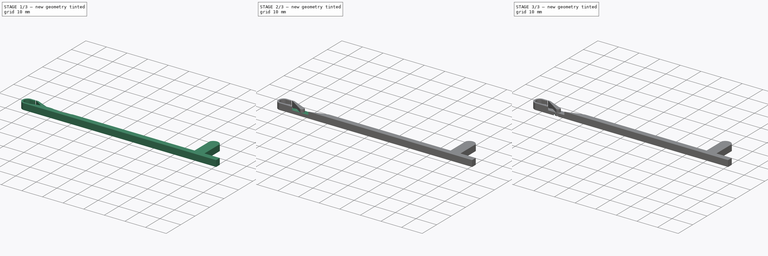
[diagram: build sequence overview — one tinted view per stage of 3, left to right]
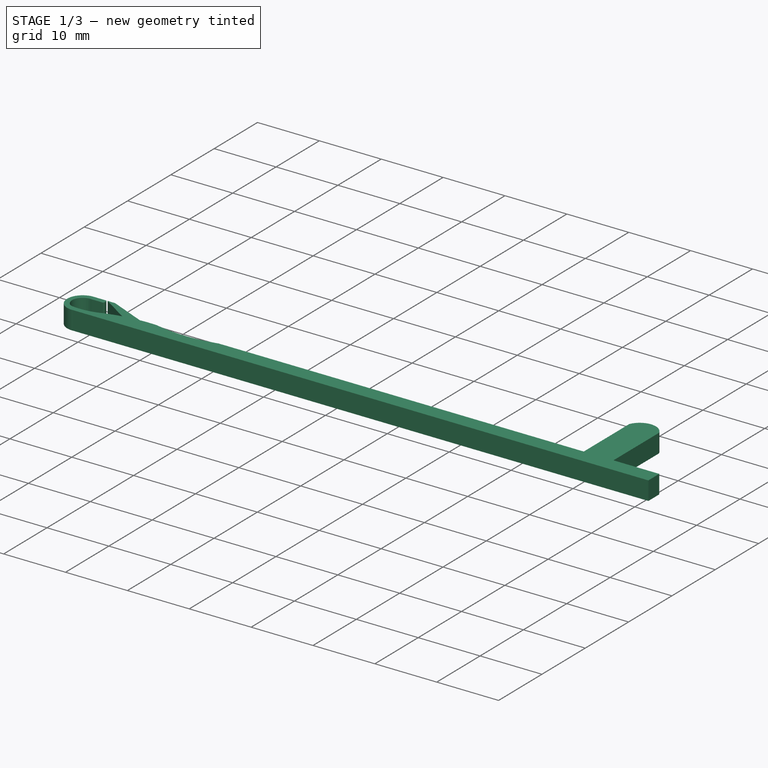
[diagram: stage 1 of 3 — iso view after this stage's code; geometry added in this stage tinted green]
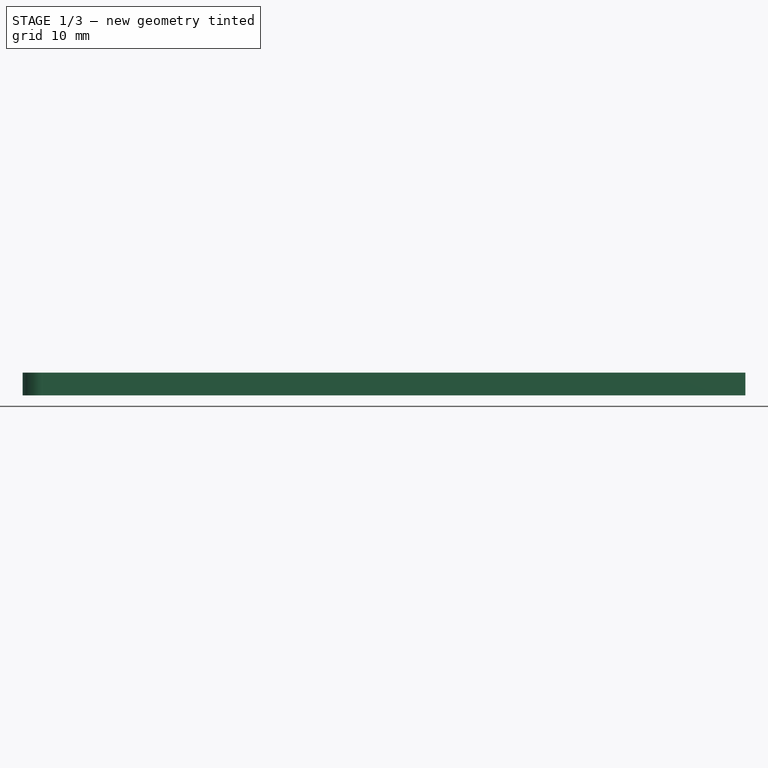
[diagram: stage 1 of 3 — front view after this stage's code; geometry added in this stage tinted green]
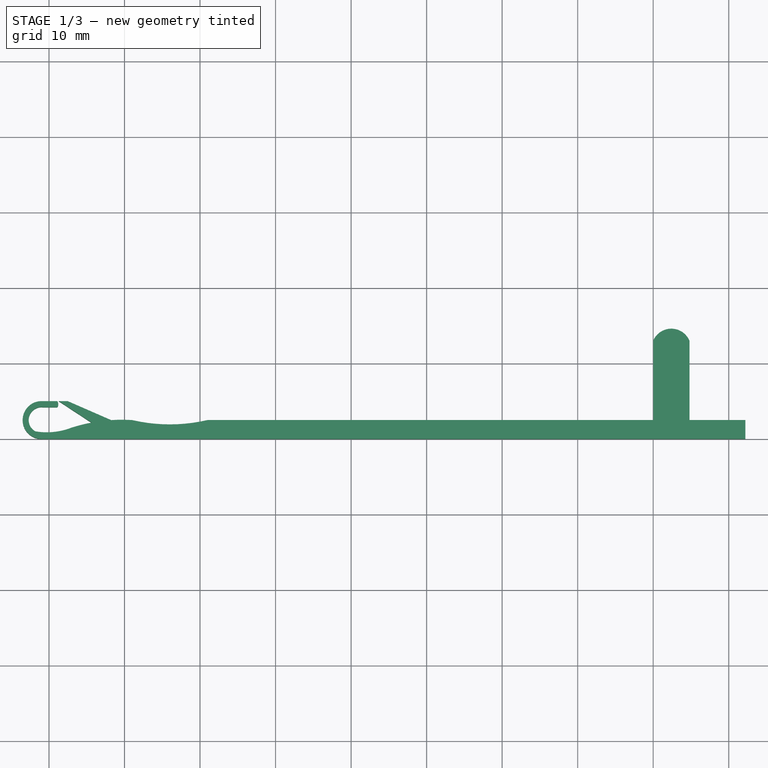
[diagram: stage 1 of 3 — top view after this stage's code; geometry added in this stage tinted green]
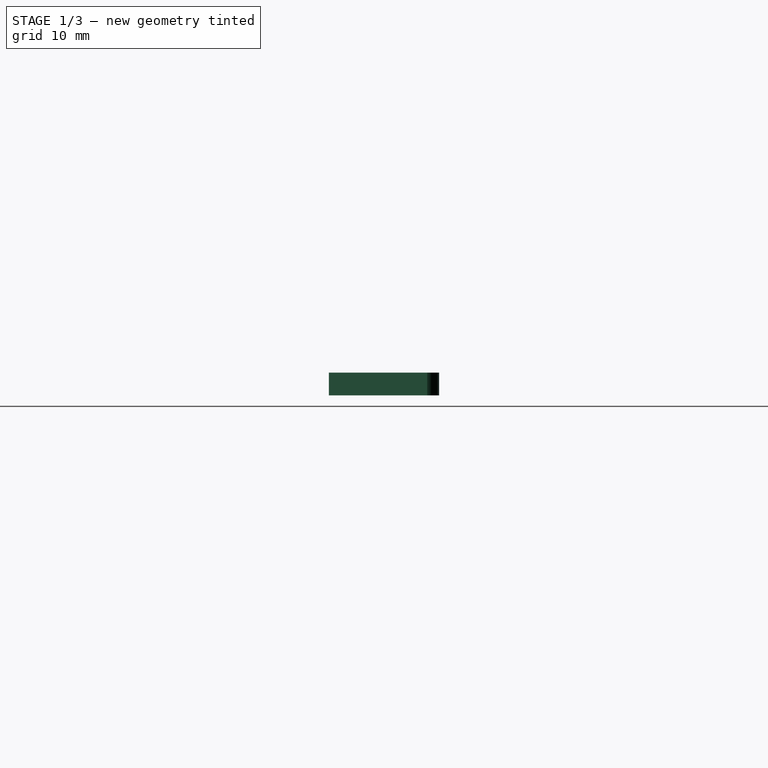
[diagram: stage 1 of 3 — right view after this stage's code; geometry added in this stage tinted green]
FCSTD DOCUMENT  (FreeCAD 0.16RUnknown)
Label: latch-needle
License: All rights reserved
LicenseURL: http://en.wikipedia.org/wiki/All_rights_reserved
objects: Sketcher::SketchObject×8, PartDesign::Pad×3, PartDesign::Pocket×3, Image::ImagePlane×1, Part::MultiFuse×1, PartDesign::Revolution×1
note: 23 computed .brp shape members not serialized (recipe doc carries the construction recipe); baked Part::Feature solids carry a one-line shape summary decoded from their .brp

FEATURE [Image::ImagePlane] ImagePlane
  Placement = pos=(-32.9986,-1.42787,-0.00574315) rot=(-0.009299,-0.009278,-0.999914;0.01432rad)
  XSize = 134.934
  YSize = 81.0702
FEATURE [Sketcher::SketchObject] Sketch  label="base"
  sketch-geometry (16):
    g0: LineSegment StartX=0 StartY=0 StartZ=0 EndX=-80.8 EndY=0 EndZ=0
    g1: LineSegment StartX=0 StartY=2.5 StartZ=0 EndX=-59 EndY=2.5 EndZ=0
    g2: ArcOfCircle CenterX=-64 CenterY=23.9243 CenterZ=0 NormalX=0 NormalY=0 NormalZ=1 Radius=22 StartAngle=4.48311 EndAngle=4.94167
    g3: LineSegment StartX=0 StartY=2.5 StartZ=0 EndX=0 EndY=0 EndZ=0
    g4: ArcOfCircle CenterX=-70.3174 CenterY=-19.4605 CenterZ=0 NormalX=0 NormalY=0 NormalZ=1 Radius=22 StartAngle=1.51088 EndAngle=1.87943
    g5: LineSegment [constr] StartX=-69 StartY=2.5 StartZ=0 EndX=-59 EndY=2.5 EndZ=0
    g6: LineSegment [constr] StartX=-77 StartY=1.5 StartZ=0 EndX=-77 EndY=2.5 EndZ=0
    g7: LineSegment [constr] StartX=-77 StartY=2.5 StartZ=0 EndX=-69 EndY=2.5 EndZ=0
    g8: ArcOfCircle CenterX=-80.98 CenterY=2.5 CenterZ=0 NormalX=0 NormalY=0 NormalZ=1 Radius=1.7095 StartAngle=1.46531 EndAngle=4.21211
    g9: ArcOfCircle CenterX=-80.98 CenterY=2.5 CenterZ=0 NormalX=0 NormalY=0 NormalZ=1 Radius=2.50647 StartAngle=1.49892 EndAngle=4.78426
    g10: LineSegment [constr] StartX=-80.8 StartY=5 StartZ=0 EndX=-80.8 EndY=4.2 EndZ=0
    g11: LineSegment StartX=-80.8 StartY=5 StartZ=0 EndX=-78.9 EndY=5 EndZ=0
    g12: LineSegment StartX=-80.8 StartY=4.2 StartZ=0 EndX=-78.9 EndY=4.2 EndZ=0
    g13: ArcOfCircle CenterX=-79.4501 CenterY=4.6 CenterZ=0 NormalX=0 NormalY=0 NormalZ=1 Radius=0.680154 StartAngle=5.65447 EndAngle=6.9119
    g14: LineSegment [constr] StartX=-78.9 StartY=5 StartZ=0 EndX=-78.9 EndY=4.2 EndZ=0
    g15: ArcOfCircle CenterX=-80.2983 CenterY=9.87383 CenterZ=0 NormalX=0 NormalY=0 NormalZ=1 Radius=9 StartAngle=4.54475 EndAngle=5.08761
  constraints (47):
    c: Coincident(g0,g-1)
    c: Horizontal(g0)
    c: DistanceX(g0,g0) = 80.8
    c: Horizontal(g1)
    c: Coincident(g2,g1)
    c: Coincident(g3,g1)
    c: Coincident(g3,g-1)
    c: Vertical(g3)
    c: DistanceY(g3,g3) = 2.5
    c: DistanceX(g1,g1) = 59
    c: Coincident(g4,g2)
    c: Coincident(g5,g1)
    c: Horizontal(g5)
    c: Coincident(g5,g2)
    c: DistanceX(g5,g5) = 10
    c: Coincident(g6,g4)
    c: Vertical(g6)
    c: Coincident(g7,g6)
    c: Coincident(g7,g2)
    c: Horizontal(g7)
    c: DistanceX(g7,g7) = 8
    c: DistanceY(g6,g6) = 1
    c: Coincident(g9,g8)
    c: Coincident(g9,g0)
    c: Coincident(g10,g9)
    c: Coincident(g10,g8)
    c: Vertical(g10)
    c: DistanceX(g8,g0) = 1
    c: DistanceY(g0,g8) = 1
    c: DistanceX(g0,g8) = 0
    c: Coincident(g11,g9)
    c: Coincident(g12,g8)
    c: Horizontal(g12)
    c: Coincident(g13,g11)
    c: Coincident(g12,g13)
    c: Horizontal(g11)
    c: Coincident(g14,g11)
    c: Coincident(g14,g12)
    c: Vertical(g14)
    c: DistanceX(g11,g11) = 1.9
    c: DistanceY(g10,g10) = 0.8
    c: Coincident(g15,g4)
    c: Coincident(g15,g8)
    c: Radius(g15) = 9
    c: Radius(g4) = 22
    c: Radius(g2) = 22
    c: DistanceY(g12) = 4.2
FEATURE [PartDesign::Pad] Pad
  Length = 3
  Length2 = 100
  Sketch = -> Sketch
  Type = 0
FEATURE [Sketcher::SketchObject] Sketch001  label="butt"
  sketch-geometry (7):
    g0: LineSegment StartX=0 StartY=0 StartZ=0 EndX=0 EndY=13 EndZ=0
    g1: ArcOfCircle CenterX=2.4 CenterY=12 CenterZ=0 NormalX=0 NormalY=0 NormalZ=1 Radius=2.6 StartAngle=0.394791 EndAngle=2.7468
    g2: LineSegment StartX=4.8 StartY=13 StartZ=0 EndX=4.8 EndY=2.5 EndZ=0
    g3: LineSegment StartX=4.8 StartY=2.5 StartZ=0 EndX=12.2 EndY=2.5 EndZ=0
    g4: LineSegment StartX=12.2 StartY=2.5 StartZ=0 EndX=12.2 EndY=0 EndZ=0
    g5: LineSegment StartX=12.2 StartY=0 StartZ=0 EndX=0 EndY=0 EndZ=0
    g6: LineSegment [constr] StartX=0 StartY=13 StartZ=0 EndX=4.8 EndY=13 EndZ=0
  constraints (20):
    c: Vertical(g0)
    c: Coincident(g1,g0)
    c: Coincident(g1,g2)
    c: Vertical(g2)
    c: Coincident(g2,g3)
    c: Horizontal(g3)
    c: Coincident(g3,g4)
    c: Vertical(g4)
    c: Coincident(g4,g5)
    c: Coincident(g5,g-1)
    c: Horizontal(g5)
    c: Coincident(g0,g-1)
    c: DistanceY(g0,g0) = 13
    c: Coincident(g6,g0)
    c: Coincident(g6,g1)
    c: Horizontal(g6)
    c: DistanceX(g-1,g2) = 4.8
    c: DistanceX(g3,g3) = 7.4
    c: Radius(g1) = 2.6
    c: DistanceY(g4,g4) = 2.5
FEATURE [PartDesign::Pad] Pad001
  Length = 3
  Length2 = 100
  Sketch = -> Sketch001
  Type = 0
FEATURE [Sketcher::SketchObject] Sketch006
  sketch-geometry (5):
    g0: LineSegment StartX=-71.1773 StartY=0.0669919 StartZ=0 EndX=-78.7049 EndY=5 EndZ=0
    g1: LineSegment StartX=-78.7049 StartY=5 StartZ=0 EndX=-77.5049 EndY=5 EndZ=0
    g2: LineSegment StartX=-77.5049 StartY=5 StartZ=0 EndX=-70.174 EndY=1.79717 EndZ=0
    g3: ArcOfCircle CenterX=-71.2495 CenterY=1.26482 CenterZ=0 NormalX=0 NormalY=0 NormalZ=1 Radius=1.2 StartAngle=4.7726 EndAngle=6.74283
    g4: LineSegment [constr] StartX=-71.1773 StartY=0.0669919 StartZ=0 EndX=-70.174 EndY=1.79717 EndZ=0
  constraints (15):
    c: Coincident(g0,g1)
    c: Horizontal(g1)
    c: Coincident(g1,g2)
    c: DistanceY(g0) = 5
    c: DistanceX(g1,g1) = 1.2
    c: Coincident(g3,g0)
    c: Radius(g3) = 1.2
    c: DistanceX(g3) = -71.2495
    c: DistanceY(g3) = 1.26482
    c: Distance(g0) = 9
    c: Distance(g2) = 8
    c: Coincident(g2,g3)
    c: Coincident(g4,g0)
    c: Coincident(g4,g2)
    c: Distance(g4) = 2
FEATURE [PartDesign::Pad] Pad002
  Length = 3
  Length2 = 100
  Sketch = -> Sketch006
  Type = 0
FEATURE [Sketcher::SketchObject] Sketch007
  ExternalGeometry = -> [Pad002]
  Placement = pos=(0,0,0) rot=(1,0,0;3.14159rad)
  Support = -> Pad002 [Face5]
  sketch-geometry (3):
    g0: ArcOfCircle CenterX=-71.5007 CenterY=0.020673 CenterZ=0 NormalX=0 NormalY=0 NormalZ=1 Radius=4.06614 StartAngle=3.69765 EndAngle=4.28461
    g1: LineSegment StartX=-74.9542 StartY=-2.12561 StartZ=0 EndX=-71.1773 EndY=-0.0669919 EndZ=0
    g2: LineSegment StartX=-73.1875 StartY=-3.67906 StartZ=0 EndX=-70.174 EndY=-1.79717 EndZ=0
  constraints (4):
    c: Coincident(g1,g0)
    c: Coincident(g1,g-3)
    c: Coincident(g2,g0)
    c: Coincident(g2,g-3)
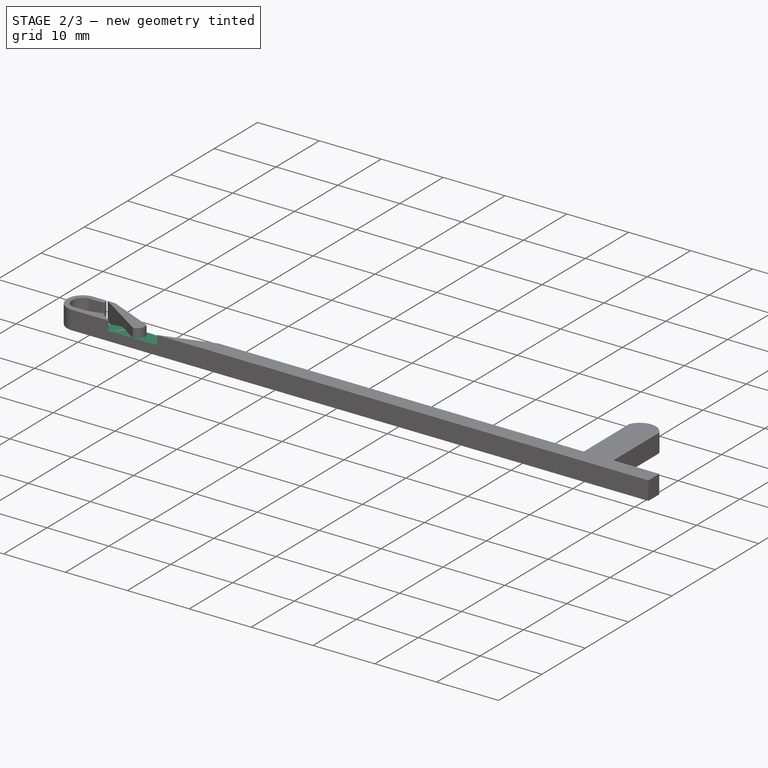
[diagram: stage 2 of 3 — iso view after this stage's code; geometry added in this stage tinted green]
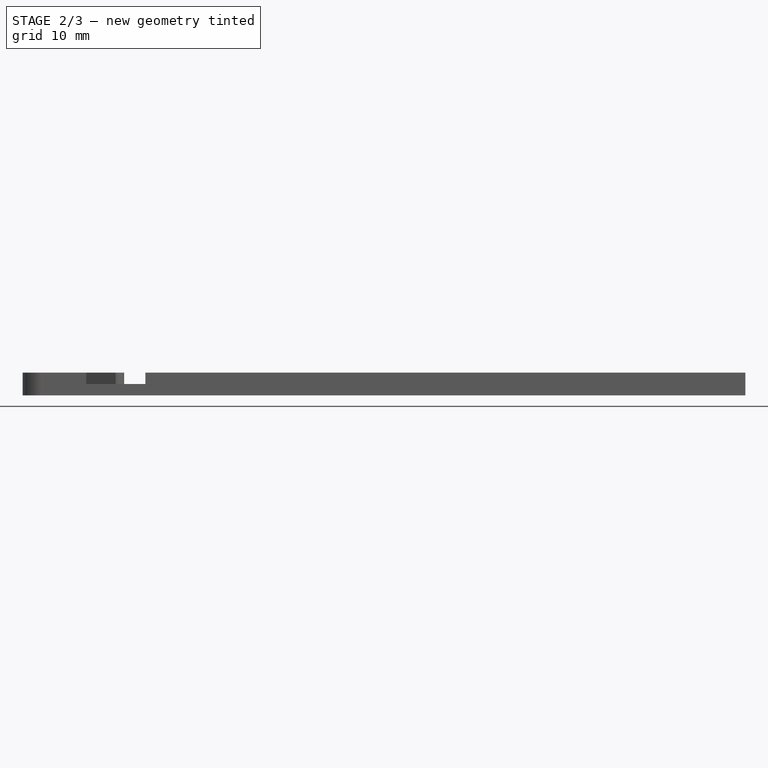
[diagram: stage 2 of 3 — front view after this stage's code; geometry added in this stage tinted green]
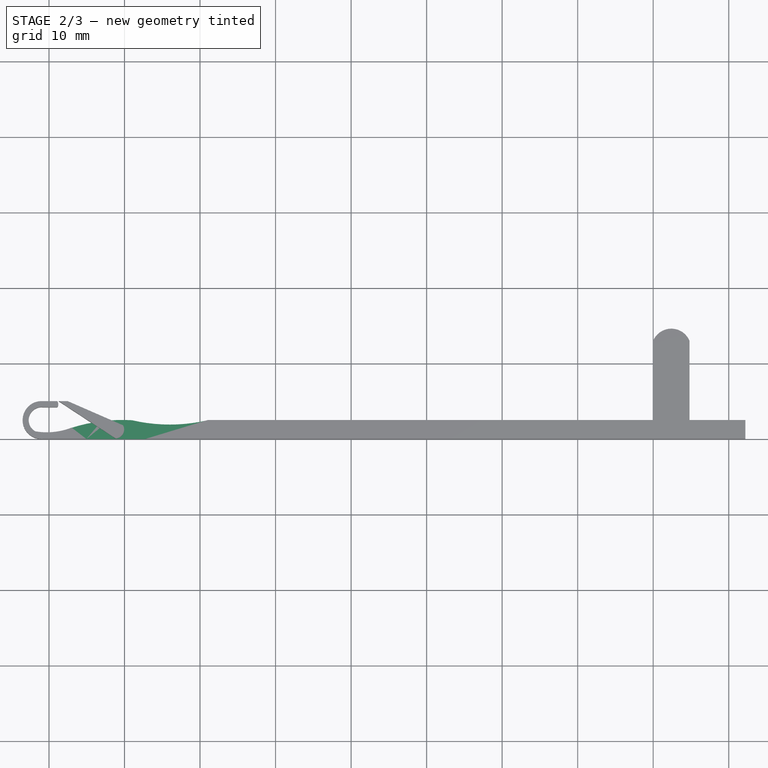
[diagram: stage 2 of 3 — top view after this stage's code; geometry added in this stage tinted green]
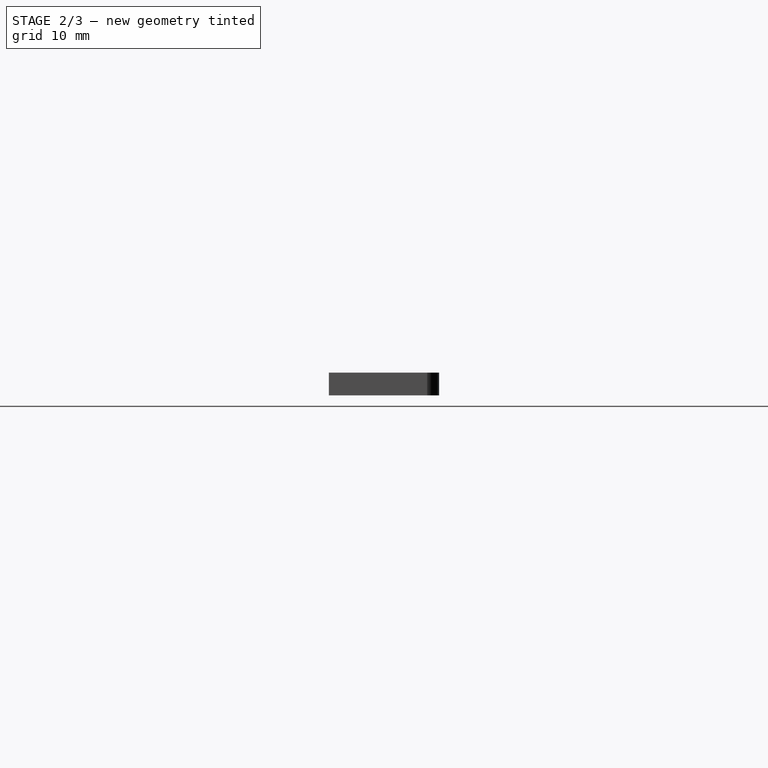
[diagram: stage 2 of 3 — right view after this stage's code; geometry added in this stage tinted green]
FEATURE [Part::MultiFuse] Fusion  label="[stl]"
  Shapes = -> [Pad001,Pad]
FEATURE [Sketcher::SketchObject] Sketch003  label="pocket"
  ExternalGeometry = -> [Fusion]
  Placement = pos=(0,0,3) rot=(0,0,1;0rad)
  Support = -> Fusion [Face11]
  sketch-geometry (5):
    g0: LineSegment StartX=-75.0571 StartY=0 StartZ=0 EndX=-67.2309 EndY=0 EndZ=0
    g1: LineSegment StartX=-75.0571 StartY=0 StartZ=0 EndX=-77 EndY=1.5 EndZ=0
    g2: LineSegment StartX=-67.2309 StartY=0 StartZ=0 EndX=-59 EndY=2.5 EndZ=0
    g3: ArcOfCircle CenterX=-70.3174 CenterY=-19.4605 CenterZ=0 NormalX=0 NormalY=0 NormalZ=1 Radius=22 StartAngle=1.51088 EndAngle=1.87943
    g4: ArcOfCircle CenterX=-64 CenterY=23.9243 CenterZ=0 NormalX=0 NormalY=0 NormalZ=1 Radius=22 StartAngle=4.48311 EndAngle=4.94167
  constraints (12):
    c: PointOnObject(g0,g-1)
    c: Horizontal(g0)
    c: Coincident(g1,g0)
    c: Coincident(g2,g0)
    c: Coincident(g1,g-3)
    c: Coincident(g2,g-4)
    c: Coincident(g3,g1)
    c: Coincident(g3,g-4)
    c: Coincident(g4,g3)
    c: Coincident(g4,g2)
    c: Coincident(g4,g-4)
    c: Coincident(g3,g-3)
FEATURE [PartDesign::Pocket] Pocket
  Length = 1.5
  Sketch = -> Sketch003
  Type = 0
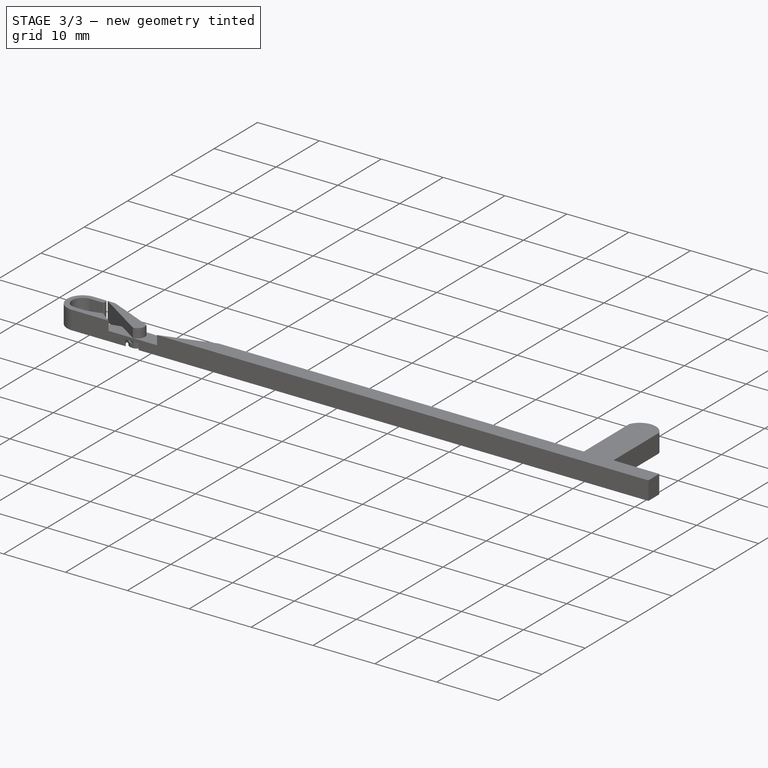
[diagram: stage 3 of 3 — iso view after this stage's code; geometry added in this stage tinted green]
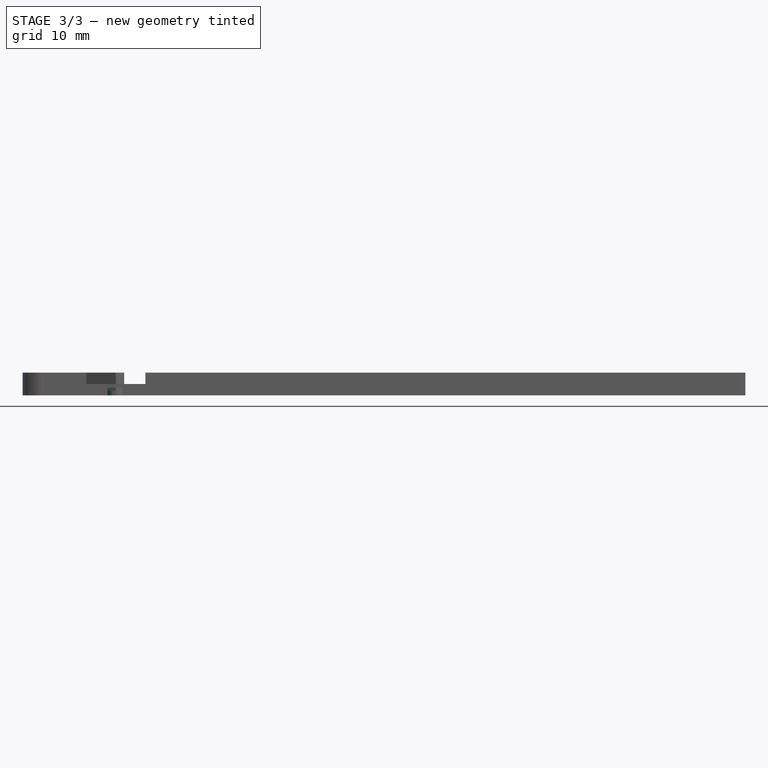
[diagram: stage 3 of 3 — front view after this stage's code; geometry added in this stage tinted green]
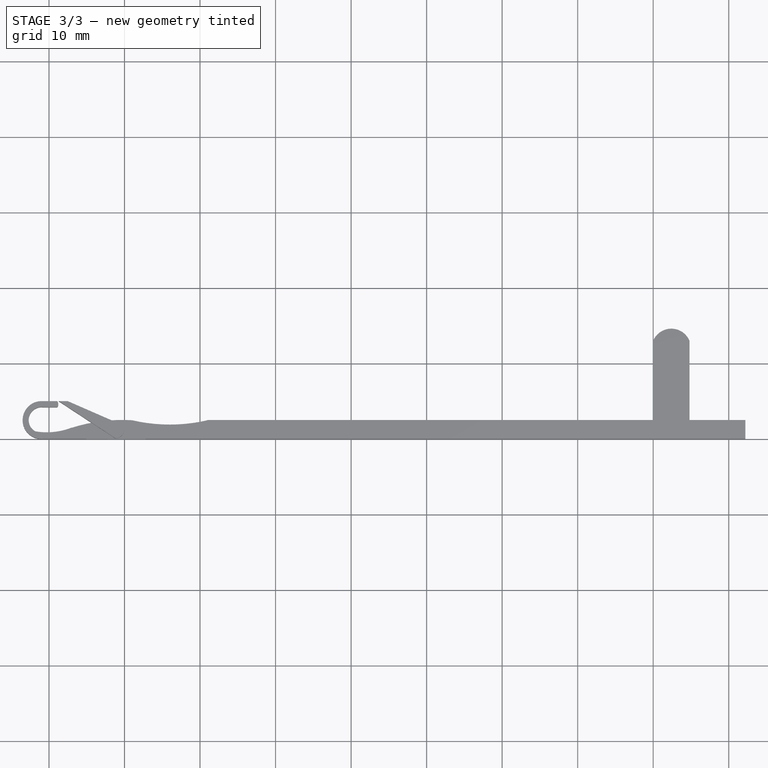
[diagram: stage 3 of 3 — top view after this stage's code; geometry added in this stage tinted green]
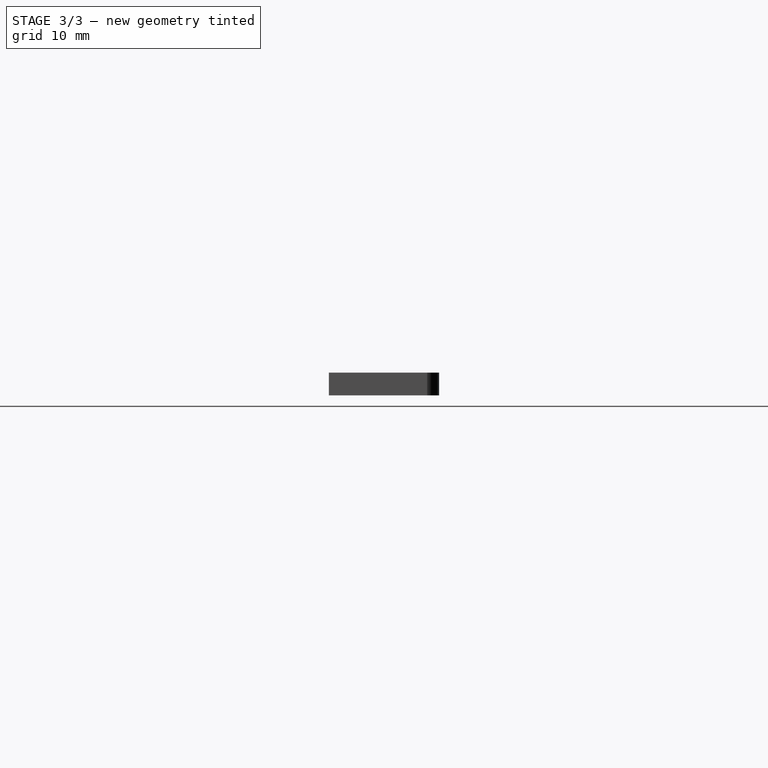
[diagram: stage 3 of 3 — right view after this stage's code; geometry added in this stage tinted green]
FEATURE [Sketcher::SketchObject] Sketch002  label="rivet-hole"
  Placement = pos=(0,0,1.5) rot=(0,0,1;0rad)
  Support = -> Pocket [Face22]
  sketch-geometry (1):
    g0: Circle CenterX=-71.2644 CenterY=1.28118 CenterZ=0 NormalX=0 NormalY=0 NormalZ=1 Radius=0.8
  constraints (1):
    c: Radius(g0) = 0.8
FEATURE [PartDesign::Pocket] Pocket001
  Length = 5
  Sketch = -> Sketch002
  Type = 1
FEATURE [Sketcher::SketchObject] Sketch004  label="rivet-ps"
  Placement = pos=(-71.2644,1.28118,0) rot=(-1,0,0;4.71239rad)
  sketch-geometry (6):
    g0: LineSegment StartX=0 StartY=2 StartZ=0 EndX=0 EndY=0 EndZ=0
    g1: LineSegment StartX=0 StartY=0 StartZ=0 EndX=1.2 EndY=0 EndZ=0
    g2: LineSegment StartX=1.2 StartY=0 StartZ=0 EndX=1.2 EndY=0.6 EndZ=0
    g3: LineSegment StartX=1.2 StartY=0.6 StartZ=0 EndX=0.6 EndY=0.6 EndZ=0
    g4: LineSegment StartX=0.6 StartY=0.6 StartZ=0 EndX=0.6 EndY=2 EndZ=0
    g5: LineSegment StartX=0.6 StartY=2 StartZ=0 EndX=0 EndY=2 EndZ=0
  constraints (17):
    c: Coincident(g0,g-1)
    c: Vertical(g0)
    c: Coincident(g0,g1)
    c: Horizontal(g1)
    c: Coincident(g1,g2)
    c: Vertical(g2)
    c: Coincident(g2,g3)
    c: Horizontal(g3)
    c: Coincident(g3,g4)
    c: Vertical(g4)
    c: Coincident(g4,g5)
    c: Coincident(g5,g0)
    c: Horizontal(g5)
    c: DistanceY(g2,g2) = 0.6
    c: DistanceY(g0,g0) = 2
    c: DistanceX(g1,g1) = 1.2
    c: DistanceX(g5,g5) = 0.6
FEATURE [PartDesign::Revolution] Revolution
  Angle = 360
  Axis = (0,0,1)
  Base = (-71.2644,1.28118,0)
  Placement = pos=(-71.2644,1.28118,0) rot=(-1,0,0;4.71239rad)
  ReferenceAxis = -> Sketch004 [V_Axis]
  Reversed = true
  Sketch = -> Sketch004
FEATURE [Sketcher::SketchObject] Sketch005  label="countersink"
  Placement = pos=(0,0,0) rot=(1,0,0;3.14159rad)
  Support = -> Pocket001 [Face8]
  sketch-geometry (1):
    g0: Circle CenterX=-71.2286 CenterY=-1.30197 CenterZ=0 NormalX=0 NormalY=0 NormalZ=1 Radius=1.66762
FEATURE [PartDesign::Pocket] Pocket002
  Length = 1
  Sketch = -> Sketch005
  Type = 0
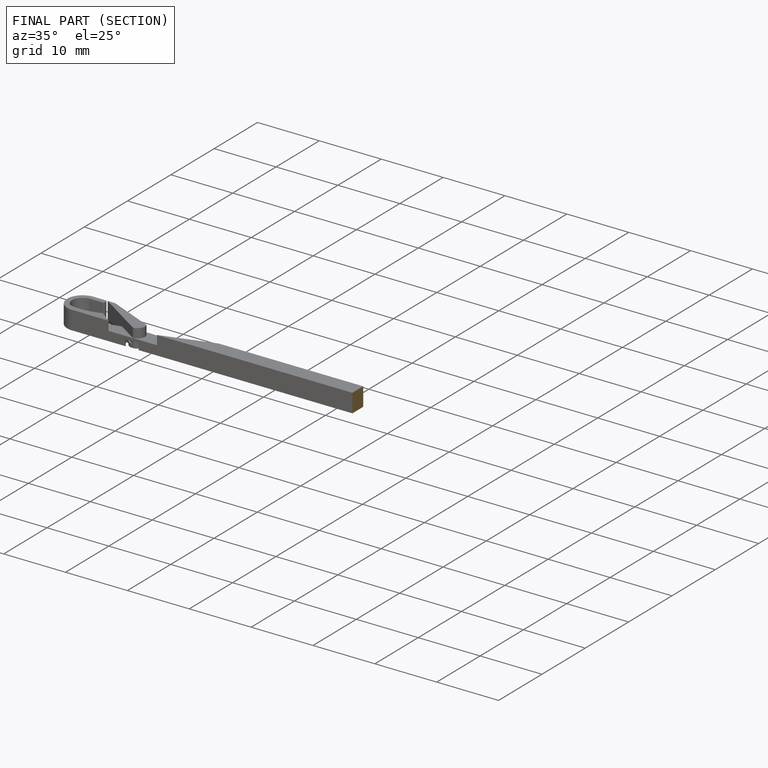
[diagram: finished part — half-section view (interior)]
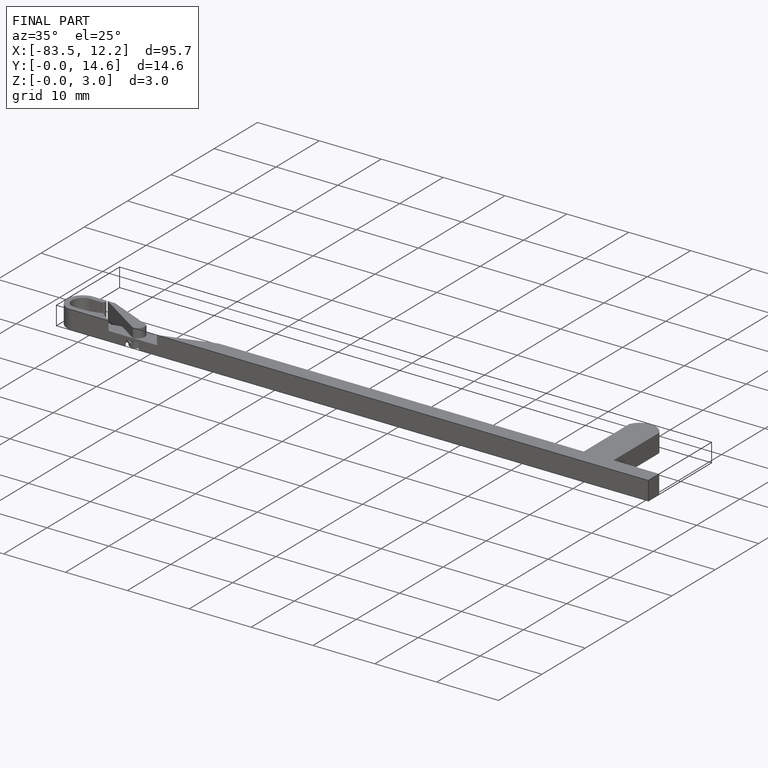
[diagram: finished part — iso view with bounding-box wireframe]
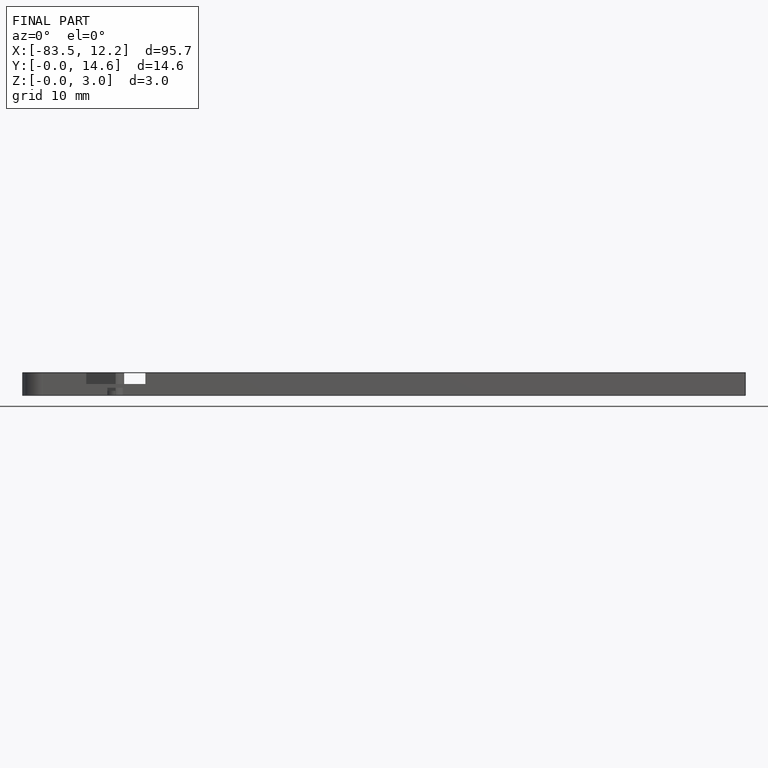
[diagram: finished part — front view with bounding-box wireframe]
